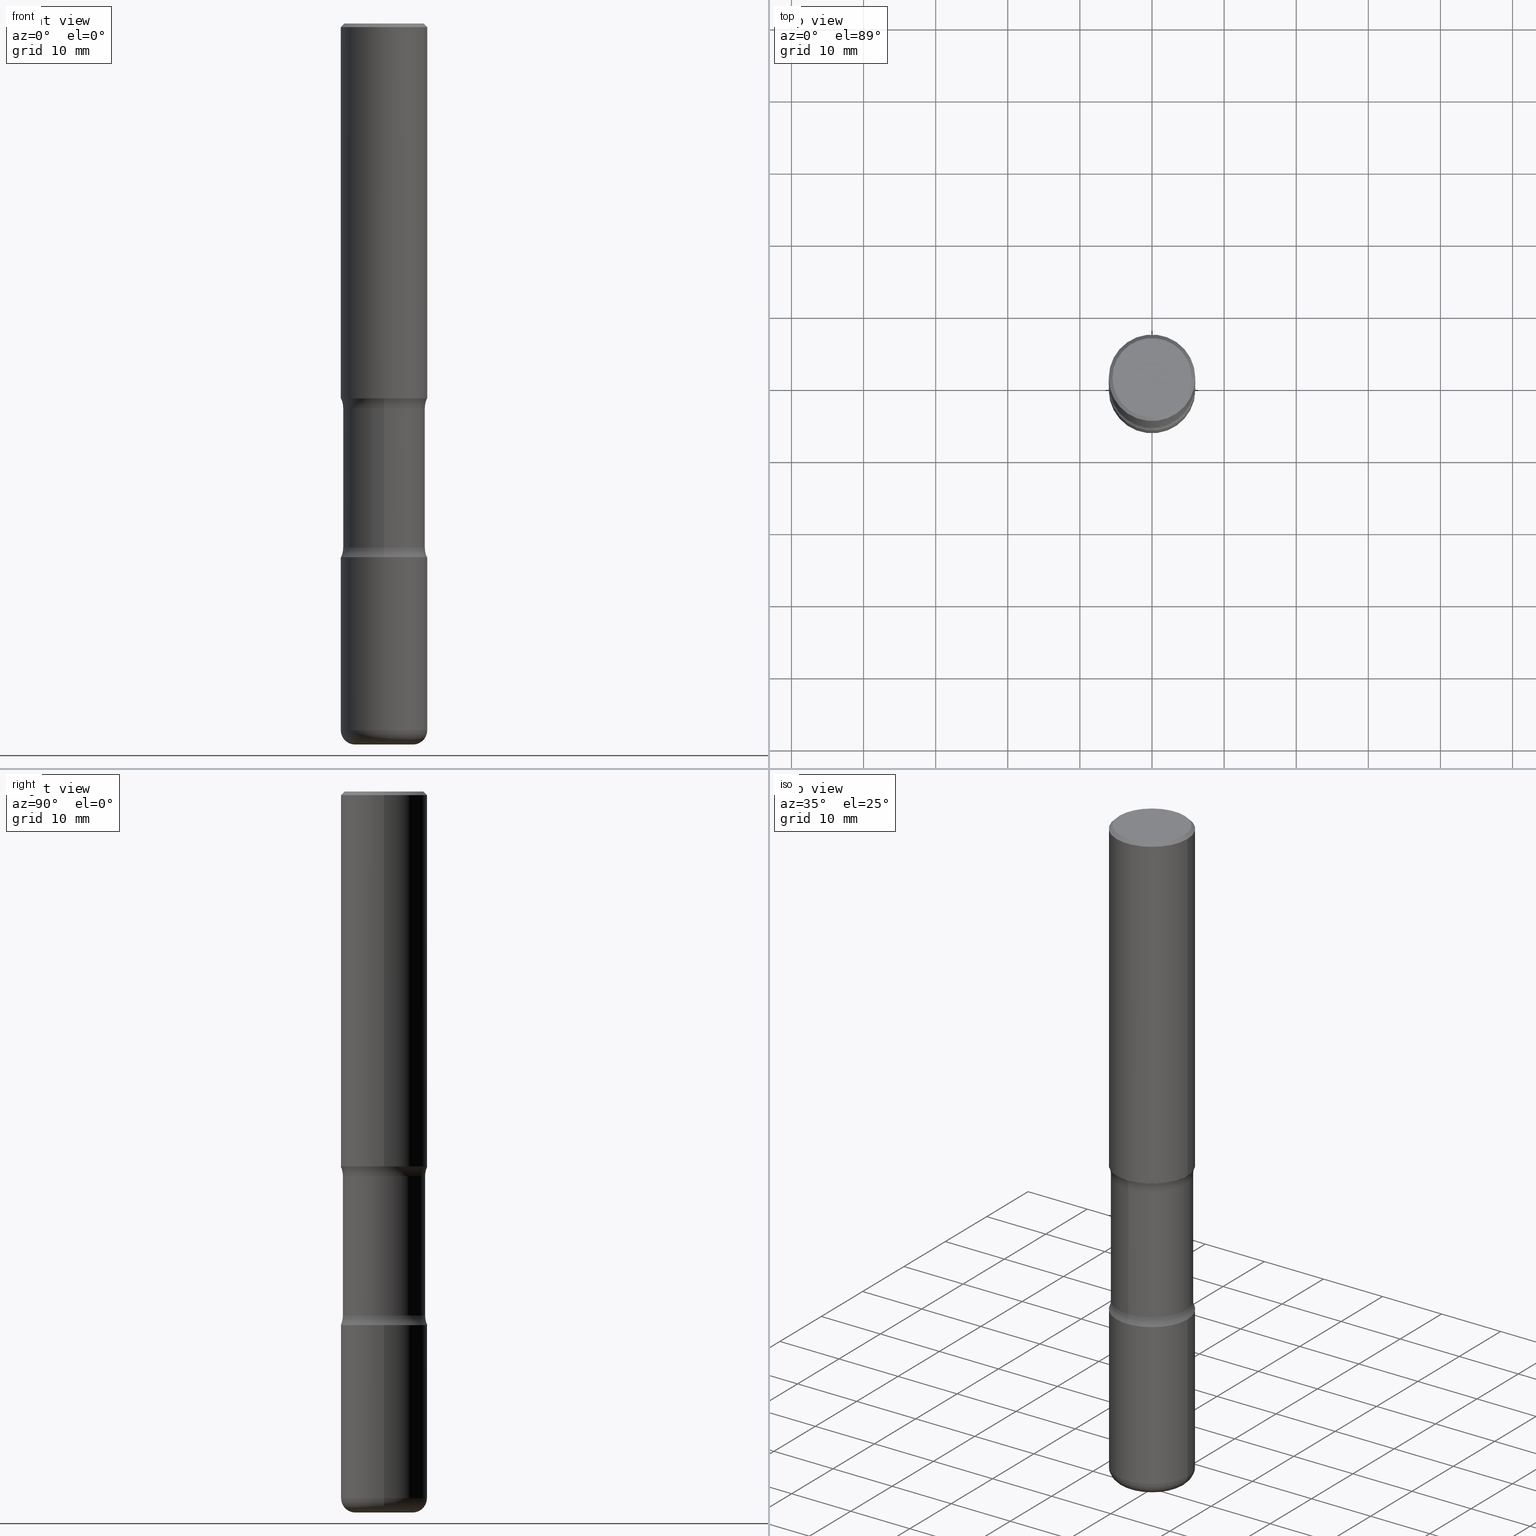
[diagram: canonical four-view strip — front | top / right | iso, engineering-drawing reading convention]
A machine part, canonical four-view strip (front | top / right | iso — engineering-drawing reading convention). The complete STEP part file that produces these views, byte-faithful:
ISO-10303-21;
HEADER;
FILE_DESCRIPTION (( 'STEP AP203' ),
    '1' );
FILE_NAME ('47706.STEP',
    '2024-03-02T07:34:06',
    ( '' ),
    ( '' ),
    'SwSTEP 2.0',
    'SolidWorks 2023',
    '' );
FILE_SCHEMA (( 'CONFIG_CONTROL_DESIGN' ));
ENDSEC;

DATA;
#1 = CARTESIAN_POINT ( 'NONE',  ( 5.070539682259229331E-29, -7.426630284172150130E-15, -2.100216601173595432 ) ) ;
#2 = UNCERTAINTY_MEASURE_WITH_UNIT (LENGTH_MEASURE( 1.000000000000000082E-05 ), #162, 'distance_accuracy_value', 'NONE');
#3 = DIRECTION ( 'NONE',  ( 6.982962677686265922E-15, 1.000000000000000000, -2.434802133390609421E-15 ) ) ;
#4 = DATE_AND_TIME ( #516, #529 ) ;
#5 = FACE_OUTER_BOUND ( 'NONE', #324, .T. ) ;
#6 = DIRECTION ( 'NONE',  ( -2.445468806185136597E-29, 3.491481338843145583E-15, 1.000000000000000000 ) ) ;
#7 = CARTESIAN_POINT ( 'NONE',  ( 0.2161999999999998368, -1.586759460484351002E-15, 4.268512490111238857E-18 ) ) ;
#8 = AXIS2_PLACEMENT_3D ( 'NONE', #29, #195, #370 ) ;
#9 = AXIS2_PLACEMENT_3D ( 'NONE', #403, #28, #137 ) ;
#10 = EDGE_CURVE ( 'NONE', #31, #26, #136, .T. ) ;
#11 = ORIENTED_EDGE ( 'NONE', *, *, #64, .T. ) ;
#12 = DIRECTION ( 'NONE',  ( 6.982962677686265922E-15, 1.000000000000000000, -2.434802133390609815E-15 ) ) ;
#13 = EDGE_CURVE ( 'NONE', #80, #544, #328, .T. ) ;
#14 = ORIENTED_EDGE ( 'NONE', *, *, #427, .T. ) ;
#15 = CARTESIAN_POINT ( 'NONE',  ( 4.936620538380257512E-29, -7.247636831167487464E-15, -2.047200000000000131 ) ) ;
#16 = CIRCLE ( 'NONE', #311, 0.2243999999999999606 ) ;
#17 = AXIS2_PLACEMENT_3D ( 'NONE', #124, #479, #215 ) ;
#18 = ORIENTED_EDGE ( 'NONE', *, *, #13, .F. ) ;
#19 = CC_DESIGN_SECURITY_CLASSIFICATION ( #337, ( #508 ) ) ;
#20 = APPROVAL ( #249, 'UNSPECIFIED' ) ;
#21 = LINE ( 'NONE', #363, #199 ) ;
#22 = DIRECTION ( 'NONE',  ( 1.000000000000000000, -6.982962677686266711E-15, 4.876176775795936353E-29 ) ) ;
#23 = ADVANCED_FACE ( 'NONE', ( #39 ), #87, .T. ) ;
#24 = VERTEX_POINT ( 'NONE', #509 ) ;
#25 = DIRECTION ( 'NONE',  ( -2.445468806185136597E-29, 3.491481338843145583E-15, 1.000000000000000000 ) ) ;
#26 = VERTEX_POINT ( 'NONE', #123 ) ;
#27 = TOROIDAL_SURFACE ( 'NONE', #469, 0.3493999999999999884, 0.1250000000000000000 ) ;
#28 = DIRECTION ( 'NONE',  ( -2.445468806185136597E-29, 3.491481338843145583E-15, 1.000000000000000000 ) ) ;
#29 = CARTESIAN_POINT ( 'NONE',  ( 6.990709676060807691E-29, -9.993088279580958225E-15, -2.860383398826405354 ) ) ;
#30 = EDGE_LOOP ( 'NONE', ( #18, #486 ) ) ;
#31 = VERTEX_POINT ( 'NONE', #50 ) ;
#32 = APPROVAL_ROLE ( '' ) ;
#33 = ORIENTED_EDGE ( 'NONE', *, *, #131, .F. ) ;
#34 = CIRCLE ( 'NONE', #345, 0.07870000000000021423 ) ;
#35 = AXIS2_PLACEMENT_3D ( 'NONE', #88, #263, #523 ) ;
#36 =( LENGTH_UNIT ( ) NAMED_UNIT ( * ) SI_UNIT ( $, .METRE. ) );
#37 = EDGE_LOOP ( 'NONE', ( #416, #314, #548, #144 ) ) ;
#38 = APPROVAL_DATE_TIME ( #415, #372 ) ;
#39 = FACE_OUTER_BOUND ( 'NONE', #500, .T. ) ;
#40 = DIRECTION ( 'NONE',  ( 2.525985086076564115E-29, -3.376177443336566513E-15, -1.000000000000000000 ) ) ;
#41 = DATE_TIME_ROLE ( 'classification_date' ) ;
#42 = CONICAL_SURFACE ( 'NONE', #412, 0.2361999999999998823, 0.7853981633974479459 ) ;
#43 = CIRCLE ( 'NONE', #312, 0.2243999999999999606 ) ;
#44 = DIRECTION ( 'NONE',  ( -1.000000000000000000, 6.982962677686265922E-15, -4.876176775795935793E-29 ) ) ;
#45 = CC_DESIGN_APPROVAL ( #372, ( #48 ) ) ;
#46 = DIRECTION ( 'NONE',  ( -2.445468806185136597E-29, 3.491481338843145583E-15, 1.000000000000000000 ) ) ;
#47 = DIMENSIONAL_EXPONENTS ( 1.000000000000000000, 0.000000000000000000, 0.000000000000000000, 0.000000000000000000, 0.000000000000000000, 0.000000000000000000, 0.000000000000000000 ) ;
#48 = PRODUCT_DEFINITION ( 'UNKNOWN', '', #508, #268 ) ;
#49 = DIRECTION ( 'NONE',  ( 2.525985086076564115E-29, -3.376177443336566513E-15, -1.000000000000000000 ) ) ;
#50 = CARTESIAN_POINT ( 'NONE',  ( -0.2362000000000001598, -1.930493169962915017E-15, -2.047200000000000131 ) ) ;
#51 = CC_DESIGN_DATE_AND_TIME_ASSIGNMENT ( #4, #41, ( #337 ) ) ;
#52 = CARTESIAN_POINT ( 'NONE',  ( 2.439847159583631044E-15, 0.3493999999999924388, -2.100216601173596320 ) ) ;
#53 = CARTESIAN_POINT ( 'NONE',  ( -2.397058000421302516E-15, -0.3494000000000099249, -2.860383398826404022 ) ) ;
#54 = EDGE_CURVE ( 'NONE', #200, #549, #429, .T. ) ;
#55 = CIRCLE ( 'NONE', #296, 0.1575000000000002232 ) ;
#56 = EDGE_LOOP ( 'NONE', ( #391, #492, #399, #190 ) ) ;
#57 = CARTESIAN_POINT ( 'NONE',  ( 9.710227154047748282E-29, -1.362793696358492956E-14, -3.937000000000000277 ) ) ;
#58 = EDGE_CURVE ( 'NONE', #200, #493, #283, .T. ) ;
#59 = EDGE_LOOP ( 'NONE', ( #183, #505, #243, #539 ) ) ;
#60 = DIRECTION ( 'NONE',  ( 6.982962677686265922E-15, 1.000000000000000000, -3.376177443336566513E-15 ) ) ;
#61 = ORIENTED_EDGE ( 'NONE', *, *, #297, .F. ) ;
#62 = CARTESIAN_POINT ( 'NONE',  ( 0.000000000000000000, 0.000000000000000000, 0.000000000000000000 ) ) ;
#63 = AXIS2_PLACEMENT_3D ( 'NONE', #522, #341, #44 ) ;
#64 = EDGE_CURVE ( 'NONE', #107, #274, #545, .T. ) ;
#65 = CARTESIAN_POINT ( 'NONE',  ( 7.124628819939777829E-29, -1.017208173258562247E-14, -2.913400000000000212 ) ) ;
#66 = EDGE_LOOP ( 'NONE', ( #331, #278, #321, #458 ) ) ;
#67 = DIRECTION ( 'NONE',  ( -2.445468806185136597E-29, 3.491481338843145583E-15, 1.000000000000000000 ) ) ;
#68 = ORIENTED_EDGE ( 'NONE', *, *, #395, .F. ) ;
#69 = DIRECTION ( 'NONE',  ( 2.525985086076564115E-29, -3.376177443336566513E-15, -1.000000000000000000 ) ) ;
#70 = DIRECTION ( 'NONE',  ( 6.982962677686265922E-15, 1.000000000000000000, -3.376177443336566513E-15 ) ) ;
#71 = CIRCLE ( 'NONE', #72, 0.1250000000000000000 ) ;
#72 = AXIS2_PLACEMENT_3D ( 'NONE', #53, #259, #468 ) ;
#73 = DIRECTION ( 'NONE',  ( 7.105427357601001859E-15, 1.000000000000000000, -3.491481338843145583E-15 ) ) ;
#74 = EDGE_CURVE ( 'NONE', #107, #114, #206, .T. ) ;
#75 = PERSON_AND_ORGANIZATION_ROLE ( 'design_supplier' ) ;
#76 = LINE ( 'NONE', #499, #313 ) ;
#77 = EDGE_CURVE ( 'NONE', #549, #237, #16, .T. ) ;
#78 = VERTEX_POINT ( 'NONE', #301 ) ;
#79 = DIRECTION ( 'NONE',  ( 1.000000000000000000, -6.982962677686268288E-15, 4.883557194083113462E-29 ) ) ;
#80 = VERTEX_POINT ( 'NONE', #213 ) ;
#81 = TOROIDAL_SURFACE ( 'NONE', #386, 0.1575000000000002232, 0.07870000000000021423 ) ;
#82 = EDGE_CURVE ( 'NONE', #26, #220, #375, .T. ) ;
#83 = CIRCLE ( 'NONE', #208, 0.2362000000000002153 ) ;
#84 = MECHANICAL_CONTEXT ( 'NONE', #250, 'mechanical' ) ;
#85 = CARTESIAN_POINT ( 'NONE',  ( 5.070539682259229331E-29, -7.426630284172150130E-15, -2.100216601173595432 ) ) ;
#86 = PERSON_AND_ORGANIZATION ( #108, #364 ) ;
#87 = CYLINDRICAL_SURFACE ( 'NONE', #527, 0.2243999999999999329 ) ;
#88 = CARTESIAN_POINT ( 'NONE',  ( 0.000000000000000000, 0.000000000000000000, 0.000000000000000000 ) ) ;
#89 = CARTESIAN_POINT ( 'NONE',  ( 0.2361999999999999933, -1.649375784469496131E-15, 1.151752954443000088E-29 ) ) ;
#90 = AXIS2_PLACEMENT_3D ( 'NONE', #65, #185, #106 ) ;
#91 = FACE_OUTER_BOUND ( 'NONE', #376, .T. ) ;
#92 = CARTESIAN_POINT ( 'NONE',  ( 5.006363740022212241E-29, -7.147760596879688202E-15, -2.047200000000000131 ) ) ;
#93 = DIRECTION ( 'NONE',  ( 2.525985086076564115E-29, -3.376177443336566513E-15, -1.000000000000000000 ) ) ;
#94 = DIRECTION ( 'NONE',  ( -6.982962677686266711E-15, -1.000000000000000000, 3.491481338843145583E-15 ) ) ;
#95 = ADVANCED_FACE ( 'NONE', ( #426 ), #530, .T. ) ;
#96 = CARTESIAN_POINT ( 'NONE',  ( 2.870178087176263655E-28, 1.356904889229186188E-14, -3.936999999999999389 ) ) ;
#97 = ADVANCED_FACE ( 'NONE', ( #248 ), #382, .F. ) ;
#98 = CARTESIAN_POINT ( 'NONE',  ( 7.124628819939777829E-29, -1.017208173258562247E-14, -2.913400000000000212 ) ) ;
#99 = CIRCLE ( 'NONE', #379, 0.2362000000000001321 ) ;
#100 = FACE_OUTER_BOUND ( 'NONE', #368, .T. ) ;
#101 = CC_DESIGN_DATE_AND_TIME_ASSIGNMENT ( #547, #121, ( #48 ) ) ;
#102 = ORIENTED_EDGE ( 'NONE', *, *, #427, .F. ) ;
#103 = CARTESIAN_POINT ( 'NONE',  ( 5.006363740022212241E-29, -7.147760596879688202E-15, -2.047200000000000131 ) ) ;
#104 = AXIS2_PLACEMENT_3D ( 'NONE', #517, #180, #392 ) ;
#105 = CYLINDRICAL_SURFACE ( 'NONE', #178, 0.2361999999999999933 ) ;
#106 = DIRECTION ( 'NONE',  ( 6.982962677686265922E-15, 1.000000000000000000, -2.313165108945183485E-15 ) ) ;
#107 = VERTEX_POINT ( 'NONE', #521 ) ;
#108 = PERSON ( 'UNSPECIFIED', 'UNSPECIFIED', 'UNSPECIFIED', ('UNSPECIFIED'), ('UNSPECIFIED'), ('UNSPECIFIED') ) ;
#109 = ORIENTED_EDGE ( 'NONE', *, *, #204, .F. ) ;
#110 = VECTOR ( 'NONE', #465, 39.37007874015748143 ) ;
#111 = ORIENTED_EDGE ( 'NONE', *, *, #474, .T. ) ;
#112 = CIRCLE ( 'NONE', #187, 0.07870000000000021423 ) ;
#113 = ORIENTED_EDGE ( 'NONE', *, *, #10, .F. ) ;
#114 = VERTEX_POINT ( 'NONE', #303 ) ;
#115 = EDGE_LOOP ( 'NONE', ( #293, #460, #442, #239 ) ) ;
#116 = ADVANCED_FACE ( 'NONE', ( #384 ), #260, .T. ) ;
#117 = PRODUCT ( '47706', '47706', '', ( #84 ) ) ;
#118 = APPLICATION_PROTOCOL_DEFINITION ( 'international standard', 'config_control_design', 1994, #310 ) ;
#119 = FACE_OUTER_BOUND ( 'NONE', #461, .T. ) ;
#120 = AXIS2_PLACEMENT_3D ( 'NONE', #234, #241, #369 ) ;
#121 = DATE_TIME_ROLE ( 'creation_date' ) ;
#122 = LINE ( 'NONE', #541, #139 ) ;
#123 = CARTESIAN_POINT ( 'NONE',  ( 0.2362000000000001321, -8.797136381349186305E-15, -2.047200000000000131 ) ) ;
#124 = CARTESIAN_POINT ( 'NONE',  ( -1.043851414335219820E-46, 1.490343170380447200E-32, 4.268512490100411279E-18 ) ) ;
#125 = CARTESIAN_POINT ( 'NONE',  ( 6.990709676060807691E-29, -9.993088279580958225E-15, -2.860383398826405354 ) ) ;
#126 = DIRECTION ( 'NONE',  ( -2.525985086076564115E-29, 3.376177443336566513E-15, 1.000000000000000000 ) ) ;
#127 = DIRECTION ( 'NONE',  ( 2.525985086076564115E-29, -3.376177443336566513E-15, -1.000000000000000000 ) ) ;
#128 = CLOSED_SHELL ( 'NONE', ( #330, #148, #488, #519, #97, #294, #275, #23 ) ) ;
#129 = DIRECTION ( 'NONE',  ( 2.445468806185136597E-29, -3.491481338843145583E-15, -1.000000000000000000 ) ) ;
#130 = DIRECTION ( 'NONE',  ( 6.982962677686265922E-15, 1.000000000000000000, -3.652203200085913934E-15 ) ) ;
#131 = EDGE_CURVE ( 'NONE', #133, #24, #34, .T. ) ;
#132 = CARTESIAN_POINT ( 'NONE',  ( 4.890937612370289799E-31, -6.982962677686315028E-17, -0.02000000000000006981 ) ) ;
#133 = VERTEX_POINT ( 'NONE', #432 ) ;
#134 = DIRECTION ( 'NONE',  ( -6.982962677686265922E-15, -1.000000000000000000, 3.376177443336566513E-15 ) ) ;
#135 = EDGE_LOOP ( 'NONE', ( #410, #351 ) ) ;
#136 = CIRCLE ( 'NONE', #231, 0.2362000000000001321 ) ;
#137 = DIRECTION ( 'NONE',  ( 1.000000000000000000, -6.982962677686267499E-15, 0.000000000000000000 ) ) ;
#138 = CIRCLE ( 'NONE', #90, 0.2362000000000001321 ) ;
#139 = VECTOR ( 'NONE', #251, 39.37007874015748143 ) ;
#140 = DIRECTION ( 'NONE',  ( 2.525985086076564115E-29, -3.376177443336566513E-15, -1.000000000000000000 ) ) ;
#141 = ADVANCED_FACE ( 'NONE', ( #202 ), #42, .T. ) ;
#142 = DIRECTION ( 'NONE',  ( 2.438088387897960049E-29, -3.491481338843145188E-15, -1.000000000000000000 ) ) ;
#143 = CC_DESIGN_PERSON_AND_ORGANIZATION_ASSIGNMENT ( #377, #554, ( #48 ) ) ;
#144 = ORIENTED_EDGE ( 'NONE', *, *, #74, .F. ) ;
#145 = DIRECTION ( 'NONE',  ( 1.000000000000000000, -6.982962677686269077E-15, 0.000000000000000000 ) ) ;
#146 = CIRCLE ( 'NONE', #120, 0.1250000000000000000 ) ;
#147 = ORIENTED_EDGE ( 'NONE', *, *, #551, .F. ) ;
#148 = ADVANCED_FACE ( 'NONE', ( #119 ), #286, .F. ) ;
#149 = CARTESIAN_POINT ( 'NONE',  ( 7.124628819939777829E-29, -1.017208173258562247E-14, -2.913400000000000212 ) ) ;
#150 = ORIENTED_EDGE ( 'NONE', *, *, #466, .F. ) ;
#151 = ORIENTED_EDGE ( 'NONE', *, *, #466, .T. ) ;
#152 = APPLICATION_PROTOCOL_DEFINITION ( 'international standard', 'config_control_design', 1994, #250 ) ;
#153 = PERSON_AND_ORGANIZATION ( #108, #364 ) ;
#154 = ADVANCED_FACE ( 'NONE', ( #462 ), #414, .F. ) ;
#155 = DIRECTION ( 'NONE',  ( -1.000000000000000000, 7.105427357600997914E-15, 0.000000000000000000 ) ) ;
#156 = ORIENTED_EDGE ( 'NONE', *, *, #452, .F. ) ;
#157 = CIRCLE ( 'NONE', #264, 0.2362000000000001321 ) ;
#158 = CARTESIAN_POINT ( 'NONE',  ( 1.566976824872867821E-15, 0.2243999999999899686, -2.860383398826405799 ) ) ;
#159 = EDGE_CURVE ( 'NONE', #287, #247, #112, .T. ) ;
#160 = EDGE_LOOP ( 'NONE', ( #245, #156 ) ) ;
#161 = EDGE_LOOP ( 'NONE', ( #436, #450, #235, #240 ) ) ;
#162 =( CONVERSION_BASED_UNIT ( 'INCH', #409 ) LENGTH_UNIT ( ) NAMED_UNIT ( #47 ) );
#163 = VERTEX_POINT ( 'NONE', #289 ) ;
#164 = COORDINATED_UNIVERSAL_TIME_OFFSET ( 5, 0, .BEHIND. ) ;
#165 = MANIFOLD_SOLID_BREP ( 'Body-Move/Copy2[1]', #424 ) ;
#166 = CARTESIAN_POINT ( 'NONE',  ( 6.994978375559792251E-29, -9.986975258939122984E-15, -2.860383398826405354 ) ) ;
#167 = CIRCLE ( 'NONE', #490, 0.1575000000000002232 ) ;
#168 = SHAPE_DEFINITION_REPRESENTATION ( #556, #496 ) ;
#169 = CARTESIAN_POINT ( 'NONE',  ( 1.566976824872894642E-15, 0.2243999999999863049, -3.937000000000000721 ) ) ;
#170 = EDGE_CURVE ( 'NONE', #24, #182, #122, .T. ) ;
#171 = FACE_OUTER_BOUND ( 'NONE', #161, .T. ) ;
#172 = DIRECTION ( 'NONE',  ( 6.982962677686265922E-15, 1.000000000000000000, -2.434802133390609815E-15 ) ) ;
#173 = PERSON_AND_ORGANIZATION ( #108, #364 ) ;
#174 = MANIFOLD_SOLID_BREP ( 'Body-Move/Copy2[2]', #518 ) ;
#175 = CYLINDRICAL_SURFACE ( 'NONE', #35, 0.2362000000000001598 ) ;
#176 = DIRECTION ( 'NONE',  ( 1.000000000000000000, -6.982962677686266711E-15, 4.876176775795936353E-29 ) ) ;
#177 = VECTOR ( 'NONE', #470, 39.37007874015748143 ) ;
#178 = AXIS2_PLACEMENT_3D ( 'NONE', #62, #534, #22 ) ;
#179 = DIRECTION ( 'NONE',  ( -1.000000000000000000, 6.982962677686265922E-15, -4.883557194083112340E-29 ) ) ;
#180 = DIRECTION ( 'NONE',  ( 1.000000000000000000, -6.860497997771530774E-15, 4.842210945089756248E-29 ) ) ;
#181 = DIRECTION ( 'NONE',  ( 2.525985086076564115E-29, -3.376177443336566513E-15, -1.000000000000000000 ) ) ;
#182 = VERTEX_POINT ( 'NONE', #419 ) ;
#183 = ORIENTED_EDGE ( 'NONE', *, *, #224, .F. ) ;
#184 = AXIS2_PLACEMENT_3D ( 'NONE', #85, #467, #130 ) ;
#185 = DIRECTION ( 'NONE',  ( 2.525985086076564115E-29, -3.376177443336566513E-15, -1.000000000000000000 ) ) ;
#186 = AXIS2_PLACEMENT_3D ( 'NONE', #317, #526, #487 ) ;
#187 = AXIS2_PLACEMENT_3D ( 'NONE', #555, #73, #155 ) ;
#188 = ORIENTED_EDGE ( 'NONE', *, *, #74, .T. ) ;
#189 = DIRECTION ( 'NONE',  ( -2.445468806185136597E-29, 3.491481338843145583E-15, 1.000000000000000000 ) ) ;
#190 = ORIENTED_EDGE ( 'NONE', *, *, #525, .F. ) ;
#191 = FACE_OUTER_BOUND ( 'NONE', #66, .T. ) ;
#192 = DIRECTION ( 'NONE',  ( 1.000000000000000000, -6.982962677686269077E-15, 0.000000000000000000 ) ) ;
#193 = CALENDAR_DATE ( 2024, 2, 3 ) ;
#194 = ORIENTED_EDGE ( 'NONE', *, *, #284, .T. ) ;
#195 = DIRECTION ( 'NONE',  ( 2.525985086076564115E-29, -3.376177443336566513E-15, -1.000000000000000000 ) ) ;
#196 = EDGE_LOOP ( 'NONE', ( #151, #322, #102, #361 ) ) ;
#197 = CALENDAR_DATE ( 2024, 2, 3 ) ;
#198 = ORIENTED_EDGE ( 'NONE', *, *, #333, .T. ) ;
#199 = VECTOR ( 'NONE', #397, 39.37007874015748143 ) ;
#200 = VERTEX_POINT ( 'NONE', #406 ) ;
#201 = CARTESIAN_POINT ( 'NONE',  ( 9.435352294904109900E-29, -1.347118244965850534E-14, -3.858299999999998509 ) ) ;
#202 = FACE_OUTER_BOUND ( 'NONE', #216, .T. ) ;
#203 = ORIENTED_EDGE ( 'NONE', *, *, #54, .T. ) ;
#204 = EDGE_CURVE ( 'NONE', #237, #549, #242, .T. ) ;
#205 = DIRECTION ( 'NONE',  ( 1.000000000000000000, -6.982962677686276177E-15, 0.000000000000000000 ) ) ;
#206 = LINE ( 'NONE', #306, #177 ) ;
#207 = EDGE_CURVE ( 'NONE', #274, #220, #76, .T. ) ;
#208 = AXIS2_PLACEMENT_3D ( 'NONE', #482, #218, #393 ) ;
#209 = APPROVAL_PERSON_ORGANIZATION ( #153, #372, #32 ) ;
#210 = DIRECTION ( 'NONE',  ( -2.445468806185136597E-29, 3.491481338843145583E-15, 1.000000000000000000 ) ) ;
#211 = DIRECTION ( 'NONE',  ( 1.000000000000000000, -6.982962677686268288E-15, 4.883557194083113462E-29 ) ) ;
#212 = FACE_OUTER_BOUND ( 'NONE', #135, .T. ) ;
#213 = CARTESIAN_POINT ( 'NONE',  ( 1.649375784469546815E-15, 0.2361999999999930266, -2.047200000000001019 ) ) ;
#214 = CARTESIAN_POINT ( 'NONE',  ( -1.539495750699834052E-15, -0.2244000000000135608, -3.936999999999999389 ) ) ;
#215 = DIRECTION ( 'NONE',  ( 1.000000000000000000, -6.982962677686266711E-15, 4.876217060660159599E-29 ) ) ;
#216 = EDGE_LOOP ( 'NONE', ( #524, #308, #188, #401 ) ) ;
#217 = DIRECTION ( 'NONE',  ( 2.525985086076564115E-29, -3.376177443336566513E-15, -1.000000000000000000 ) ) ;
#218 = DIRECTION ( 'NONE',  ( -2.445468806185136597E-29, 3.491481338843145583E-15, 1.000000000000000000 ) ) ;
#219 = APPROVAL ( #430, 'UNSPECIFIED' ) ;
#220 = VERTEX_POINT ( 'NONE', #307 ) ;
#221 = DIRECTION ( 'NONE',  ( -2.445468806185136597E-29, 3.491481338843145583E-15, 1.000000000000000000 ) ) ;
#222 = CIRCLE ( 'NONE', #445, 0.2361999999999998823 ) ;
#223 = EDGE_LOOP ( 'NONE', ( #448, #495, #150, #33 ) ) ;
#224 = EDGE_CURVE ( 'NONE', #78, #237, #71, .T. ) ;
#225 = DIRECTION ( 'NONE',  ( -1.000000000000000000, 6.982962677686265922E-15, -4.876176775795935793E-29 ) ) ;
#226 = ORIENTED_EDGE ( 'NONE', *, *, #224, .T. ) ;
#227 = DIRECTION ( 'NONE',  ( -2.445468806185136597E-29, 3.491481338843145583E-15, 1.000000000000000000 ) ) ;
#228 = EDGE_CURVE ( 'NONE', #274, #107, #380, .T. ) ;
#229 = ORIENTED_EDGE ( 'NONE', *, *, #13, .T. ) ;
#230 = DIRECTION ( 'NONE',  ( 6.982962677686265922E-15, 1.000000000000000000, -3.376177443336566513E-15 ) ) ;
#231 = AXIS2_PLACEMENT_3D ( 'NONE', #299, #560, #378 ) ;
#232 = TOROIDAL_SURFACE ( 'NONE', #387, 0.3493999999999998218, 0.1249999999999999029 ) ;
#233 = LOCAL_TIME ( 2, 34, 6.000000000000000000, #418 ) ;
#234 = CARTESIAN_POINT ( 'NONE',  ( 2.439847159583651160E-15, 0.3493999999999899964, -2.860383398826406243 ) ) ;
#235 = ORIENTED_EDGE ( 'NONE', *, *, #170, .T. ) ;
#236 = ADVANCED_FACE ( 'NONE', ( #388 ), #435, .T. ) ;
#237 = VERTEX_POINT ( 'NONE', #428 ) ;
#238 = PERSON_AND_ORGANIZATION ( #108, #364 ) ;
#239 = ORIENTED_EDGE ( 'NONE', *, *, #82, .F. ) ;
#240 = ORIENTED_EDGE ( 'NONE', *, *, #474, .F. ) ;
#241 = DIRECTION ( 'NONE',  ( -1.000000000000000000, 6.982962677686265922E-15, -4.883557194083112340E-29 ) ) ;
#242 = CIRCLE ( 'NONE', #8, 0.2243999999999999606 ) ;
#243 = ORIENTED_EDGE ( 'NONE', *, *, #551, .T. ) ;
#244 = CIRCLE ( 'NONE', #9, 0.2361999999999998823 ) ;
#245 = ORIENTED_EDGE ( 'NONE', *, *, #441, .F. ) ;
#246 = DIRECTION ( 'NONE',  ( 1.000000000000000000, 0.000000000000000000, 0.000000000000000000 ) ) ;
#247 = VERTEX_POINT ( 'NONE', #385 ) ;
#248 = FACE_OUTER_BOUND ( 'NONE', #30, .T. ) ;
#249 = APPROVAL_STATUS ( 'not_yet_approved' ) ;
#250 = APPLICATION_CONTEXT ( 'configuration controlled 3d designs of mechanical parts and assemblies' ) ;
#251 = DIRECTION ( 'NONE',  ( -2.445468806185136877E-29, 3.491481338843145188E-15, 1.000000000000000000 ) ) ;
#252 = CARTESIAN_POINT ( 'NONE',  ( -1.043851414335219820E-46, 1.490343170380447200E-32, 4.268512490100411279E-18 ) ) ;
#253 = APPROVAL_ROLE ( '' ) ;
#254 = LINE ( 'NONE', #214, #346 ) ;
#255 = DIRECTION ( 'NONE',  ( -2.445468806185136877E-29, 3.491481338843145188E-15, 1.000000000000000000 ) ) ;
#256 = AXIS2_PLACEMENT_3D ( 'NONE', #252, #421, #511 ) ;
#257 = CIRCLE ( 'NONE', #354, 0.1249999999999999029 ) ;
#258 = CC_DESIGN_APPROVAL ( #219, ( #337 ) ) ;
#259 = DIRECTION ( 'NONE',  ( 1.000000000000000000, -6.860497997771530774E-15, 4.842210945089756248E-29 ) ) ;
#260 = CYLINDRICAL_SURFACE ( 'NONE', #394, 0.2362000000000001598 ) ;
#261 = CYLINDRICAL_SURFACE ( 'NONE', #402, 0.2243999999999999329 ) ;
#262 = DIRECTION ( 'NONE',  ( 2.525985086076564115E-29, -3.376177443336566513E-15, -1.000000000000000000 ) ) ;
#263 = DIRECTION ( 'NONE',  ( -2.445468806185136597E-29, 3.491481338843145583E-15, 1.000000000000000000 ) ) ;
#264 = AXIS2_PLACEMENT_3D ( 'NONE', #356, #280, #398 ) ;
#265 = APPROVAL_PERSON_ORGANIZATION ( #86, #20, #325 ) ;
#266 = DIRECTION ( 'NONE',  ( 6.982962677686265922E-15, 1.000000000000000000, -2.313165108945183485E-15 ) ) ;
#267 = CARTESIAN_POINT ( 'NONE',  ( 5.088323202950023588E-29, -7.401163270367792936E-15, -2.100216601173595432 ) ) ;
#268 = DESIGN_CONTEXT ( 'detailed design', #310, 'design' ) ;
#269 = CARTESIAN_POINT ( 'NONE',  ( -1.620449627073587747E-15, -0.2362000000000074318, -2.047199999999999243 ) ) ;
#270 = CC_DESIGN_PERSON_AND_ORGANIZATION_ASSIGNMENT ( #282, #75, ( #508 ) ) ;
#271 = VECTOR ( 'NONE', #255, 39.37007874015748143 ) ;
#272 = DIRECTION ( 'NONE',  ( -2.445468806185136597E-29, 3.491481338843145583E-15, 1.000000000000000000 ) ) ;
#273 = TOROIDAL_SURFACE ( 'NONE', #453, 0.3493999999999998218, 0.1249999999999999029 ) ;
#274 = VERTEX_POINT ( 'NONE', #7 ) ;
#275 = ADVANCED_FACE ( 'NONE', ( #381 ), #27, .F. ) ;
#276 = EDGE_LOOP ( 'NONE', ( #68, #113 ) ) ;
#277 = CARTESIAN_POINT ( 'NONE',  ( 9.627810689950880306E-29, -1.374596203102546026E-14, -3.936999999999998945 ) ) ;
#278 = ORIENTED_EDGE ( 'NONE', *, *, #10, .T. ) ;
#279 = ORIENTED_EDGE ( 'NONE', *, *, #54, .F. ) ;
#280 = DIRECTION ( 'NONE',  ( -2.445468806185136597E-29, 3.491481338843145583E-15, 1.000000000000000000 ) ) ;
#281 = ORIENTED_EDGE ( 'NONE', *, *, #355, .T. ) ;
#282 = PERSON_AND_ORGANIZATION ( #108, #364 ) ;
#283 = CIRCLE ( 'NONE', #184, 0.2243999999999999606 ) ;
#284 = EDGE_CURVE ( 'NONE', #493, #544, #396, .T. ) ;
#285 = ORIENTED_EDGE ( 'NONE', *, *, #228, .T. ) ;
#286 = TOROIDAL_SURFACE ( 'NONE', #353, 0.3493999999999999884, 0.1250000000000000000 ) ;
#287 = VERTEX_POINT ( 'NONE', #350 ) ;
#288 = APPROVAL_STATUS ( 'not_yet_approved' ) ;
#289 = CARTESIAN_POINT ( 'NONE',  ( -0.2362000000000001321, -1.014333014925670672E-14, -2.913400000000000212 ) ) ;
#290 = ORIENTED_EDGE ( 'NONE', *, *, #58, .T. ) ;
#291 =( NAMED_UNIT ( * ) SI_UNIT ( $, .STERADIAN. ) SOLID_ANGLE_UNIT ( ) );
#292 = DIRECTION ( 'NONE',  ( 0.7071067811865472397, -7.319954787623254468E-15, -0.7071067811865477948 ) ) ;
#293 = ORIENTED_EDGE ( 'NONE', *, *, #395, .T. ) ;
#294 = ADVANCED_FACE ( 'NONE', ( #212 ), #300, .F. ) ;
#295 = COORDINATED_UNIVERSAL_TIME_OFFSET ( 5, 0, .BEHIND. ) ;
#296 = AXIS2_PLACEMENT_3D ( 'NONE', #277, #189, #449 ) ;
#297 = EDGE_CURVE ( 'NONE', #493, #200, #43, .T. ) ;
#298 = DIRECTION ( 'NONE',  ( -2.438088387897960049E-29, 3.491481338843145188E-15, 1.000000000000000000 ) ) ;
#299 = CARTESIAN_POINT ( 'NONE',  ( 5.006363740022212241E-29, -7.147760596879688202E-15, -2.047200000000000131 ) ) ;
#300 = PLANE ( 'NONE',  #559 ) ;
#301 = CARTESIAN_POINT ( 'NONE',  ( -1.620449627073565067E-15, -0.2362000000000102629, -2.913399999999999768 ) ) ;
#302 = DIRECTION ( 'NONE',  ( 1.000000000000000000, -6.982962677686267499E-15, 0.000000000000000000 ) ) ;
#303 = CARTESIAN_POINT ( 'NONE',  ( -0.2361999999999998823, 1.579546157692632438E-15, -0.02000000000000006981 ) ) ;
#304 = CIRCLE ( 'NONE', #528, 0.2362000000000002431 ) ;
#305 = CARTESIAN_POINT ( 'NONE',  ( 6.994978375559792251E-29, -9.986975258939122984E-15, -2.860383398826405354 ) ) ;
#306 = CARTESIAN_POINT ( 'NONE',  ( -0.2361999999999998823, 1.579546157692632438E-15, -0.02000000000000006981 ) ) ;
#307 = CARTESIAN_POINT ( 'NONE',  ( 0.2361999999999998823, -1.690279253850498179E-15, -0.02000000000000006981 ) ) ;
#308 = ORIENTED_EDGE ( 'NONE', *, *, #64, .F. ) ;
#309 = DIRECTION ( 'NONE',  ( 6.982962677686265922E-15, 1.000000000000000000, -3.652203200085913934E-15 ) ) ;
#310 = APPLICATION_CONTEXT ( 'configuration controlled 3d designs of mechanical parts and assemblies' ) ;
#311 = AXIS2_PLACEMENT_3D ( 'NONE', #125, #127, #3 ) ;
#312 = AXIS2_PLACEMENT_3D ( 'NONE', #1, #93, #309 ) ;
#313 = VECTOR ( 'NONE', #292, 39.37007874015748143 ) ;
#314 = ORIENTED_EDGE ( 'NONE', *, *, #207, .T. ) ;
#315 = DIRECTION ( 'NONE',  ( 6.982962677686265922E-15, 1.000000000000000000, -3.469747663417773452E-15 ) ) ;
#316 = EDGE_CURVE ( 'NONE', #553, #78, #520, .T. ) ;
#317 = CARTESIAN_POINT ( 'NONE',  ( 1.509716530915769534E-15, 0.2161999999999998368, -7.527240092128373149E-16 ) ) ;
#318 = CARTESIAN_POINT ( 'NONE',  ( 9.627810689950880306E-29, -1.374596203102546026E-14, -3.936999999999998945 ) ) ;
#319 = AXIS2_PLACEMENT_3D ( 'NONE', #431, #129, #513 ) ;
#320 = FACE_OUTER_BOUND ( 'NONE', #503, .T. ) ;
#321 = ORIENTED_EDGE ( 'NONE', *, *, #82, .T. ) ;
#322 = ORIENTED_EDGE ( 'NONE', *, *, #439, .T. ) ;
#323 = PERSON_AND_ORGANIZATION ( #108, #364 ) ;
#324 = EDGE_LOOP ( 'NONE', ( #14, #111 ) ) ;
#325 = APPROVAL_ROLE ( '' ) ;
#326 = CC_DESIGN_PERSON_AND_ORGANIZATION_ASSIGNMENT ( #456, #459, ( #117 ) ) ;
#327 = CIRCLE ( 'NONE', #425, 0.2362000000000001321 ) ;
#328 = CIRCLE ( 'NONE', #558, 0.2362000000000002431 ) ;
#329 = CARTESIAN_POINT ( 'NONE',  ( 1.649375784469567917E-15, 0.2361999999999899458, -2.913400000000000656 ) ) ;
#330 = ADVANCED_FACE ( 'NONE', ( #91 ), #261, .T. ) ;
#331 = ORIENTED_EDGE ( 'NONE', *, *, #340, .F. ) ;
#332 = CARTESIAN_POINT ( 'NONE',  ( 9.435352294904109900E-29, -1.347118244965850534E-14, -3.858299999999998509 ) ) ;
#333 = EDGE_CURVE ( 'NONE', #200, #80, #257, .T. ) ;
#334 = ORIENTED_EDGE ( 'NONE', *, *, #284, .F. ) ;
#335 = CIRCLE ( 'NONE', #507, 0.2362000000000002153 ) ;
#336 = DIRECTION ( 'NONE',  ( 6.982962677686265922E-15, 1.000000000000000000, -3.469747663417773452E-15 ) ) ;
#337 = SECURITY_CLASSIFICATION ( '', '', #454 ) ;
#338 = DIRECTION ( 'NONE',  ( 2.525985086076564115E-29, -3.376177443336566513E-15, -1.000000000000000000 ) ) ;
#339 = COORDINATED_UNIVERSAL_TIME_OFFSET ( 5, 0, .BEHIND. ) ;
#340 = EDGE_CURVE ( 'NONE', #31, #114, #510, .T. ) ;
#341 = DIRECTION ( 'NONE',  ( 2.438088387897960049E-29, -3.491481338843145188E-15, -1.000000000000000000 ) ) ;
#342 = DIRECTION ( 'NONE',  ( 2.525985086076564115E-29, -3.376177443336566513E-15, -1.000000000000000000 ) ) ;
#343 = PLANE ( 'NONE',  #63 ) ;
#344 = CARTESIAN_POINT ( 'NONE',  ( 0.1575000000000002232, -1.457099907139409361E-14, -3.858299999999998509 ) ) ;
#345 = AXIS2_PLACEMENT_3D ( 'NONE', #344, #94, #205 ) ;
#346 = VECTOR ( 'NONE', #383, 39.37007874015748143 ) ;
#347 = CARTESIAN_POINT ( 'NONE',  ( -0.2361999999999999933, 1.678301941865356591E-15, -1.161852468318208757E-29 ) ) ;
#348 = ADVANCED_FACE ( 'NONE', ( #171 ), #175, .T. ) ;
#349 = COORDINATED_UNIVERSAL_TIME_OFFSET ( 5, 0, .BEHIND. ) ;
#350 = CARTESIAN_POINT ( 'NONE',  ( -0.1575000000000002232, -1.220986886499822344E-14, -3.936999999999998945 ) ) ;
#351 = ORIENTED_EDGE ( 'NONE', *, *, #411, .T. ) ;
#352 = FACE_OUTER_BOUND ( 'NONE', #407, .T. ) ;
#353 = AXIS2_PLACEMENT_3D ( 'NONE', #166, #390, #70 ) ;
#354 = AXIS2_PLACEMENT_3D ( 'NONE', #52, #179, #423 ) ;
#355 = EDGE_CURVE ( 'NONE', #493, #237, #254, .T. ) ;
#356 = CARTESIAN_POINT ( 'NONE',  ( 7.124628819939777829E-29, -1.017208173258562247E-14, -2.913400000000000212 ) ) ;
#357 = AXIS2_PLACEMENT_3D ( 'NONE', #420, #298, #502 ) ;
#358 = CARTESIAN_POINT ( 'NONE',  ( -1.579972688886734072E-15, -0.2244000000000073713, -2.100216601173594544 ) ) ;
#359 = ADVANCED_FACE ( 'NONE', ( #5 ), #343, .F. ) ;
#360 = DIRECTION ( 'NONE',  ( 1.000000000000000000, -6.982962677686266711E-15, 4.876176775795936353E-29 ) ) ;
#361 = ORIENTED_EDGE ( 'NONE', *, *, #170, .F. ) ;
#362 =( GEOMETRIC_REPRESENTATION_CONTEXT ( 3 ) GLOBAL_UNCERTAINTY_ASSIGNED_CONTEXT ( ( #2 ) ) GLOBAL_UNIT_ASSIGNED_CONTEXT ( ( #162, #550, #291 ) ) REPRESENTATION_CONTEXT ( 'NONE', 'WORKASPACE' ) );
#363 = CARTESIAN_POINT ( 'NONE',  ( -0.2362000000000001598, 1.678301941865357775E-15, -1.161852468318209598E-29 ) ) ;
#364 = ORGANIZATION ( 'UNSPECIFIED', 'UNSPECIFIED', '' ) ;
#365 = DATE_AND_TIME ( #193, #233 ) ;
#366 = ORIENTED_EDGE ( 'NONE', *, *, #297, .T. ) ;
#367 = EDGE_CURVE ( 'NONE', #114, #220, #222, .T. ) ;
#368 = EDGE_LOOP ( 'NONE', ( #11, #285 ) ) ;
#369 = DIRECTION ( 'NONE',  ( -6.982962677686266711E-15, -1.000000000000000000, 0.000000000000000000 ) ) ;
#370 = DIRECTION ( 'NONE',  ( 6.982962677686265922E-15, 1.000000000000000000, -2.434802133390609421E-15 ) ) ;
#371 = ORIENTED_EDGE ( 'NONE', *, *, #58, .F. ) ;
#372 = APPROVAL ( #288, 'UNSPECIFIED' ) ;
#373 = AXIS2_PLACEMENT_3D ( 'NONE', #437, #181, #266 ) ;
#374 = ORIENTED_EDGE ( 'NONE', *, *, #204, .T. ) ;
#375 = LINE ( 'NONE', #89, #271 ) ;
#376 = EDGE_LOOP ( 'NONE', ( #290, #281, #536, #279 ) ) ;
#377 = PERSON_AND_ORGANIZATION ( #108, #364 ) ;
#378 = DIRECTION ( 'NONE',  ( 1.000000000000000000, -6.982962677686269077E-15, 0.000000000000000000 ) ) ;
#379 = AXIS2_PLACEMENT_3D ( 'NONE', #149, #25, #192 ) ;
#380 = CIRCLE ( 'NONE', #17, 0.2161999999999998368 ) ;
#381 = FACE_OUTER_BOUND ( 'NONE', #59, .T. ) ;
#382 = PLANE ( 'NONE',  #489 ) ;
#383 = DIRECTION ( 'NONE',  ( 2.525985086076564115E-29, -3.376177443336566513E-15, -1.000000000000000000 ) ) ;
#384 = FACE_OUTER_BOUND ( 'NONE', #196, .T. ) ;
#385 = CARTESIAN_POINT ( 'NONE',  ( -0.2362000000000003264, -1.179288050779314737E-14, -3.858299999999998509 ) ) ;
#386 = AXIS2_PLACEMENT_3D ( 'NONE', #201, #405, #79 ) ;
#387 = AXIS2_PLACEMENT_3D ( 'NONE', #451, #69, #230 ) ;
#388 = FACE_OUTER_BOUND ( 'NONE', #37, .T. ) ;
#389 = ADVANCED_FACE ( 'NONE', ( #434 ), #475, .T. ) ;
#390 = DIRECTION ( 'NONE',  ( 2.525985086076564115E-29, -3.376177443336566513E-15, -1.000000000000000000 ) ) ;
#391 = ORIENTED_EDGE ( 'NONE', *, *, #159, .F. ) ;
#392 = DIRECTION ( 'NONE',  ( 6.860497997771531562E-15, 1.000000000000000000, 0.000000000000000000 ) ) ;
#393 = DIRECTION ( 'NONE',  ( 1.000000000000000000, -6.982962677686266711E-15, 0.000000000000000000 ) ) ;
#394 = AXIS2_PLACEMENT_3D ( 'NONE', #417, #6, #176 ) ;
#395 = EDGE_CURVE ( 'NONE', #26, #31, #327, .T. ) ;
#396 = CIRCLE ( 'NONE', #104, 0.1249999999999999029 ) ;
#397 = DIRECTION ( 'NONE',  ( -2.445468806185136877E-29, 3.491481338843145188E-15, 1.000000000000000000 ) ) ;
#398 = DIRECTION ( 'NONE',  ( 1.000000000000000000, -6.982962677686269077E-15, 0.000000000000000000 ) ) ;
#399 = ORIENTED_EDGE ( 'NONE', *, *, #131, .T. ) ;
#400 = DIRECTION ( 'NONE',  ( 1.000000000000000000, -6.982962677686266711E-15, 0.000000000000000000 ) ) ;
#401 = ORIENTED_EDGE ( 'NONE', *, *, #367, .T. ) ;
#402 = AXIS2_PLACEMENT_3D ( 'NONE', #57, #217, #12 ) ;
#403 = CARTESIAN_POINT ( 'NONE',  ( 4.890937612370289799E-31, -6.982962677686315028E-17, -0.02000000000000006981 ) ) ;
#404 = ADVANCED_FACE ( 'NONE', ( #191 ), #105, .T. ) ;
#405 = DIRECTION ( 'NONE',  ( -2.445468806185136597E-29, 3.491481338843145583E-15, 1.000000000000000000 ) ) ;
#406 = CARTESIAN_POINT ( 'NONE',  ( 1.566976824872848494E-15, 0.2243999999999925499, -2.100216601173596320 ) ) ;
#407 = EDGE_LOOP ( 'NONE', ( #334, #371, #198, #229 ) ) ;
#408 = ADVANCED_FACE ( 'NONE', ( #100 ), #447, .F. ) ;
#409 = LENGTH_MEASURE_WITH_UNIT ( LENGTH_MEASURE( 0.02539999999999999897 ), #36 );
#410 = ORIENTED_EDGE ( 'NONE', *, *, #316, .T. ) ;
#411 = EDGE_CURVE ( 'NONE', #78, #553, #138, .T. ) ;
#412 = AXIS2_PLACEMENT_3D ( 'NONE', #557, #552, #504 ) ;
#413 = AXIS2_PLACEMENT_3D ( 'NONE', #498, #501, #246 ) ;
#414 = PLANE ( 'NONE',  #357 ) ;
#415 = DATE_AND_TIME ( #197, #481 ) ;
#416 = ORIENTED_EDGE ( 'NONE', *, *, #228, .F. ) ;
#417 = CARTESIAN_POINT ( 'NONE',  ( 0.000000000000000000, 0.000000000000000000, 0.000000000000000000 ) ) ;
#418 = COORDINATED_UNIVERSAL_TIME_OFFSET ( 5, 0, .BEHIND. ) ;
#419 = CARTESIAN_POINT ( 'NONE',  ( 0.2362000000000001321, -1.182145751705511899E-14, -2.913400000000000212 ) ) ;
#420 = CARTESIAN_POINT ( 'NONE',  ( 5.006363740022212241E-29, -7.147760596879688202E-15, -2.047200000000000131 ) ) ;
#421 = DIRECTION ( 'NONE',  ( -2.445468806185136597E-29, 3.491481338843145583E-15, 1.000000000000000000 ) ) ;
#422 = APPROVAL_DATE_TIME ( #464, #219 ) ;
#423 = DIRECTION ( 'NONE',  ( -6.982962677686264344E-15, -1.000000000000000000, 0.000000000000000000 ) ) ;
#424 = CLOSED_SHELL ( 'NONE', ( #116, #95, #389, #535, #348, #359 ) ) ;
#425 = AXIS2_PLACEMENT_3D ( 'NONE', #103, #272, #145 ) ;
#426 = FACE_OUTER_BOUND ( 'NONE', #223, .T. ) ;
#427 = EDGE_CURVE ( 'NONE', #182, #163, #157, .T. ) ;
#428 = CARTESIAN_POINT ( 'NONE',  ( -1.579972688886713168E-15, -0.2244000000000099804, -2.860383398826404466 ) ) ;
#429 = LINE ( 'NONE', #169, #444 ) ;
#430 = APPROVAL_STATUS ( 'not_yet_approved' ) ;
#431 = CARTESIAN_POINT ( 'NONE',  ( 4.890937612370289799E-31, -6.982962677686315028E-17, -0.02000000000000006981 ) ) ;
#432 = CARTESIAN_POINT ( 'NONE',  ( 0.1575000000000002232, -1.484577865276104695E-14, -3.936999999999998945 ) ) ;
#433 = ADVANCED_FACE ( 'NONE', ( #443 ), #532, .T. ) ;
#434 = FACE_OUTER_BOUND ( 'NONE', #160, .T. ) ;
#435 = CONICAL_SURFACE ( 'NONE', #319, 0.2361999999999998823, 0.7853981633974479459 ) ;
#436 = ORIENTED_EDGE ( 'NONE', *, *, #439, .F. ) ;
#437 = CARTESIAN_POINT ( 'NONE',  ( 7.124628819939777829E-29, -1.017208173258562247E-14, -2.913400000000000212 ) ) ;
#438 = PRODUCT_RELATED_PRODUCT_CATEGORY ( 'detail', '', ( #117 ) ) ;
#439 = EDGE_CURVE ( 'NONE', #247, #163, #21, .T. ) ;
#440 = DIRECTION ( 'NONE',  ( 2.525985086076564115E-29, -3.376177443336566513E-15, -1.000000000000000000 ) ) ;
#441 = EDGE_CURVE ( 'NONE', #133, #287, #167, .T. ) ;
#442 = ORIENTED_EDGE ( 'NONE', *, *, #514, .F. ) ;
#443 = FACE_OUTER_BOUND ( 'NONE', #115, .T. ) ;
#444 = VECTOR ( 'NONE', #262, 39.37007874015748143 ) ;
#445 = AXIS2_PLACEMENT_3D ( 'NONE', #132, #210, #302 ) ;
#446 = CC_DESIGN_APPROVAL ( #20, ( #508 ) ) ;
#447 = PLANE ( 'NONE',  #186 ) ;
#448 = ORIENTED_EDGE ( 'NONE', *, *, #441, .T. ) ;
#449 = DIRECTION ( 'NONE',  ( 1.000000000000000000, -6.982962677686265133E-15, 0.000000000000000000 ) ) ;
#450 = ORIENTED_EDGE ( 'NONE', *, *, #525, .T. ) ;
#451 = CARTESIAN_POINT ( 'NONE',  ( 5.088323202950023588E-29, -7.401163270367792936E-15, -2.100216601173595432 ) ) ;
#452 = EDGE_CURVE ( 'NONE', #287, #133, #55, .T. ) ;
#453 = AXIS2_PLACEMENT_3D ( 'NONE', #267, #440, #60 ) ;
#454 = SECURITY_CLASSIFICATION_LEVEL ( 'unclassified' ) ;
#455 = AXIS2_PLACEMENT_3D ( 'NONE', #332, #46, #211 ) ;
#456 = PERSON_AND_ORGANIZATION ( #108, #364 ) ;
#457 = ORIENTED_EDGE ( 'NONE', *, *, #333, .F. ) ;
#458 = ORIENTED_EDGE ( 'NONE', *, *, #367, .F. ) ;
#459 = PERSON_AND_ORGANIZATION_ROLE ( 'design_owner' ) ;
#460 = ORIENTED_EDGE ( 'NONE', *, *, #340, .T. ) ;
#461 = EDGE_LOOP ( 'NONE', ( #476, #226, #374, #147 ) ) ;
#462 = FACE_OUTER_BOUND ( 'NONE', #276, .T. ) ;
#463 = CARTESIAN_POINT ( 'NONE',  ( 9.710227154047748282E-29, -1.362793696358492956E-14, -3.937000000000000277 ) ) ;
#464 = DATE_AND_TIME ( #512, #497 ) ;
#465 = DIRECTION ( 'NONE',  ( -2.445468806185136877E-29, 3.491481338843145188E-15, 1.000000000000000000 ) ) ;
#466 = EDGE_CURVE ( 'NONE', #24, #247, #335, .T. ) ;
#467 = DIRECTION ( 'NONE',  ( 2.525985086076564115E-29, -3.376177443336566513E-15, -1.000000000000000000 ) ) ;
#468 = DIRECTION ( 'NONE',  ( 6.860497997771529985E-15, 1.000000000000000000, 0.000000000000000000 ) ) ;
#469 = AXIS2_PLACEMENT_3D ( 'NONE', #305, #49, #472 ) ;
#470 = DIRECTION ( 'NONE',  ( -0.7071067811865472397, 2.468850131082253905E-15, -0.7071067811865477948 ) ) ;
#471 = LOCAL_TIME ( 2, 34, 6.000000000000000000, #164 ) ;
#472 = DIRECTION ( 'NONE',  ( 6.982962677686265922E-15, 1.000000000000000000, -3.376177443336566513E-15 ) ) ;
#473 = CARTESIAN_POINT ( 'NONE',  ( 4.936620538380257512E-29, -7.247636831167487464E-15, -2.047200000000000131 ) ) ;
#474 = EDGE_CURVE ( 'NONE', #163, #182, #99, .T. ) ;
#475 = PLANE ( 'NONE',  #480 ) ;
#476 = ORIENTED_EDGE ( 'NONE', *, *, #411, .F. ) ;
#477 = CC_DESIGN_PERSON_AND_ORGANIZATION_ASSIGNMENT ( #323, #494, ( #508 ) ) ;
#478 = PERSON_AND_ORGANIZATION_ROLE ( 'classification_officer' ) ;
#479 = DIRECTION ( 'NONE',  ( -2.445468806185136597E-29, 3.491481338843145583E-15, 1.000000000000000000 ) ) ;
#480 = AXIS2_PLACEMENT_3D ( 'NONE', #96, #142, #225 ) ;
#481 = LOCAL_TIME ( 2, 34, 6.000000000000000000, #295 ) ;
#482 = CARTESIAN_POINT ( 'NONE',  ( 9.435352294904109900E-29, -1.347118244965850534E-14, -3.858299999999998509 ) ) ;
#483 = ORIENTED_EDGE ( 'NONE', *, *, #355, .F. ) ;
#484 = FACE_OUTER_BOUND ( 'NONE', #56, .T. ) ;
#485 = CC_DESIGN_PERSON_AND_ORGANIZATION_ASSIGNMENT ( #238, #478, ( #337 ) ) ;
#486 = ORIENTED_EDGE ( 'NONE', *, *, #531, .F. ) ;
#487 = DIRECTION ( 'NONE',  ( -1.000000000000000000, 6.982962677686265922E-15, -4.876176775795935793E-29 ) ) ;
#488 = ADVANCED_FACE ( 'NONE', ( #320 ), #232, .F. ) ;
#489 = AXIS2_PLACEMENT_3D ( 'NONE', #92, #342, #515 ) ;
#490 = AXIS2_PLACEMENT_3D ( 'NONE', #318, #67, #491 ) ;
#491 = DIRECTION ( 'NONE',  ( 1.000000000000000000, -6.982962677686265133E-15, 0.000000000000000000 ) ) ;
#492 = ORIENTED_EDGE ( 'NONE', *, *, #452, .T. ) ;
#493 = VERTEX_POINT ( 'NONE', #358 ) ;
#494 = PERSON_AND_ORGANIZATION_ROLE ( 'creator' ) ;
#495 = ORIENTED_EDGE ( 'NONE', *, *, #159, .T. ) ;
#496 = ADVANCED_BREP_SHAPE_REPRESENTATION ( '47706', ( #165, #174, #542, #413 ), #362 ) ;
#497 = LOCAL_TIME ( 2, 34, 6.000000000000000000, #339 ) ;
#498 = CARTESIAN_POINT ( 'NONE',  ( 0.000000000000000000, 0.000000000000000000, 0.000000000000000000 ) ) ;
#499 = CARTESIAN_POINT ( 'NONE',  ( 0.2361999999999998823, -1.690279253850498179E-15, -0.02000000000000006981 ) ) ;
#500 = EDGE_LOOP ( 'NONE', ( #483, #366, #203, #109 ) ) ;
#501 = DIRECTION ( 'NONE',  ( 0.000000000000000000, 0.000000000000000000, 1.000000000000000000 ) ) ;
#502 = DIRECTION ( 'NONE',  ( 1.000000000000000000, -6.982962677686265922E-15, 4.876176775795935793E-29 ) ) ;
#503 = EDGE_LOOP ( 'NONE', ( #61, #194, #543, #457 ) ) ;
#504 = DIRECTION ( 'NONE',  ( -1.000000000000000000, 6.982962677686267499E-15, 0.000000000000000000 ) ) ;
#505 = ORIENTED_EDGE ( 'NONE', *, *, #316, .F. ) ;
#506 = CALENDAR_DATE ( 2024, 2, 3 ) ;
#507 = AXIS2_PLACEMENT_3D ( 'NONE', #538, #227, #400 ) ;
#508 = PRODUCT_DEFINITION_FORMATION_WITH_SPECIFIED_SOURCE ( 'ANY', '', #117, .NOT_KNOWN. ) ;
#509 = CARTESIAN_POINT ( 'NONE',  ( 0.2362000000000003264, -1.512055823412800345E-14, -3.858299999999998509 ) ) ;
#510 = LINE ( 'NONE', #347, #110 ) ;
#511 = DIRECTION ( 'NONE',  ( 1.000000000000000000, -6.982962677686266711E-15, 4.876217060660159599E-29 ) ) ;
#512 = CALENDAR_DATE ( 2024, 2, 3 ) ;
#513 = DIRECTION ( 'NONE',  ( -1.000000000000000000, 6.982962677686267499E-15, 0.000000000000000000 ) ) ;
#514 = EDGE_CURVE ( 'NONE', #220, #114, #244, .T. ) ;
#515 = DIRECTION ( 'NONE',  ( 6.982962677686265922E-15, 1.000000000000000000, -3.376177443336566513E-15 ) ) ;
#516 = CALENDAR_DATE ( 2024, 2, 3 ) ;
#517 = CARTESIAN_POINT ( 'NONE',  ( -2.397058000421320660E-15, -0.3494000000000072048, -2.100216601173594544 ) ) ;
#518 = CLOSED_SHELL ( 'NONE', ( #433, #236, #141, #408, #154, #404 ) ) ;
#519 = ADVANCED_FACE ( 'NONE', ( #352 ), #273, .F. ) ;
#520 = CIRCLE ( 'NONE', #373, 0.2362000000000001321 ) ;
#521 = CARTESIAN_POINT ( 'NONE',  ( -0.2161999999999998368, 1.544631344304201183E-15, 4.268512490089730842E-18 ) ) ;
#522 = CARTESIAN_POINT ( 'NONE',  ( 7.124628819939777829E-29, -1.017208173258562247E-14, -2.913400000000000212 ) ) ;
#523 = DIRECTION ( 'NONE',  ( 1.000000000000000000, -6.982962677686266711E-15, 4.876176775795936353E-29 ) ) ;
#524 = ORIENTED_EDGE ( 'NONE', *, *, #207, .F. ) ;
#525 = EDGE_CURVE ( 'NONE', #247, #24, #83, .T. ) ;
#526 = DIRECTION ( 'NONE',  ( 2.438088387897960049E-29, -3.491481338843145188E-15, -1.000000000000000000 ) ) ;
#527 = AXIS2_PLACEMENT_3D ( 'NONE', #463, #338, #172 ) ;
#528 = AXIS2_PLACEMENT_3D ( 'NONE', #15, #140, #315 ) ;
#529 = LOCAL_TIME ( 2, 34, 6.000000000000000000, #349 ) ;
#530 = TOROIDAL_SURFACE ( 'NONE', #455, 0.1575000000000002232, 0.07870000000000021423 ) ;
#531 = EDGE_CURVE ( 'NONE', #544, #80, #304, .T. ) ;
#532 = CYLINDRICAL_SURFACE ( 'NONE', #546, 0.2361999999999999933 ) ;
#533 = CARTESIAN_POINT ( 'NONE',  ( 0.000000000000000000, 0.000000000000000000, 0.000000000000000000 ) ) ;
#534 = DIRECTION ( 'NONE',  ( -2.445468806185136597E-29, 3.491481338843145583E-15, 1.000000000000000000 ) ) ;
#535 = ADVANCED_FACE ( 'NONE', ( #484 ), #81, .T. ) ;
#536 = ORIENTED_EDGE ( 'NONE', *, *, #77, .F. ) ;
#537 = APPROVAL_PERSON_ORGANIZATION ( #173, #219, #253 ) ;
#538 = CARTESIAN_POINT ( 'NONE',  ( 9.435352294904109900E-29, -1.347118244965850534E-14, -3.858299999999998509 ) ) ;
#539 = ORIENTED_EDGE ( 'NONE', *, *, #77, .T. ) ;
#540 = APPROVAL_DATE_TIME ( #365, #20 ) ;
#541 = CARTESIAN_POINT ( 'NONE',  ( 0.2362000000000001598, -1.649375784469497314E-15, 1.151752954443000929E-29 ) ) ;
#542 = MANIFOLD_SOLID_BREP ( 'Body-Move/Copy2[4]', #128 ) ;
#543 = ORIENTED_EDGE ( 'NONE', *, *, #531, .T. ) ;
#544 = VERTEX_POINT ( 'NONE', #269 ) ;
#545 = CIRCLE ( 'NONE', #256, 0.2161999999999998368 ) ;
#546 = AXIS2_PLACEMENT_3D ( 'NONE', #533, #221, #360 ) ;
#547 = DATE_AND_TIME ( #506, #471 ) ;
#548 = ORIENTED_EDGE ( 'NONE', *, *, #514, .T. ) ;
#549 = VERTEX_POINT ( 'NONE', #158 ) ;
#550 =( NAMED_UNIT ( * ) PLANE_ANGLE_UNIT ( ) SI_UNIT ( $, .RADIAN. ) );
#551 = EDGE_CURVE ( 'NONE', #553, #549, #146, .T. ) ;
#552 = DIRECTION ( 'NONE',  ( 2.445468806185136597E-29, -3.491481338843145583E-15, -1.000000000000000000 ) ) ;
#553 = VERTEX_POINT ( 'NONE', #329 ) ;
#554 = PERSON_AND_ORGANIZATION_ROLE ( 'creator' ) ;
#555 = CARTESIAN_POINT ( 'NONE',  ( -0.1575000000000002232, -1.235207764083634616E-14, -3.858299999999998509 ) ) ;
#556 = PRODUCT_DEFINITION_SHAPE ( 'NONE', 'NONE',  #48 ) ;
#557 = CARTESIAN_POINT ( 'NONE',  ( 4.890937612370289799E-31, -6.982962677686315028E-17, -0.02000000000000006981 ) ) ;
#558 = AXIS2_PLACEMENT_3D ( 'NONE', #473, #40, #336 ) ;
#559 = AXIS2_PLACEMENT_3D ( 'NONE', #98, #126, #134 ) ;
#560 = DIRECTION ( 'NONE',  ( -2.445468806185136597E-29, 3.491481338843145583E-15, 1.000000000000000000 ) ) ;
ENDSEC;
END-ISO-10303-21;
